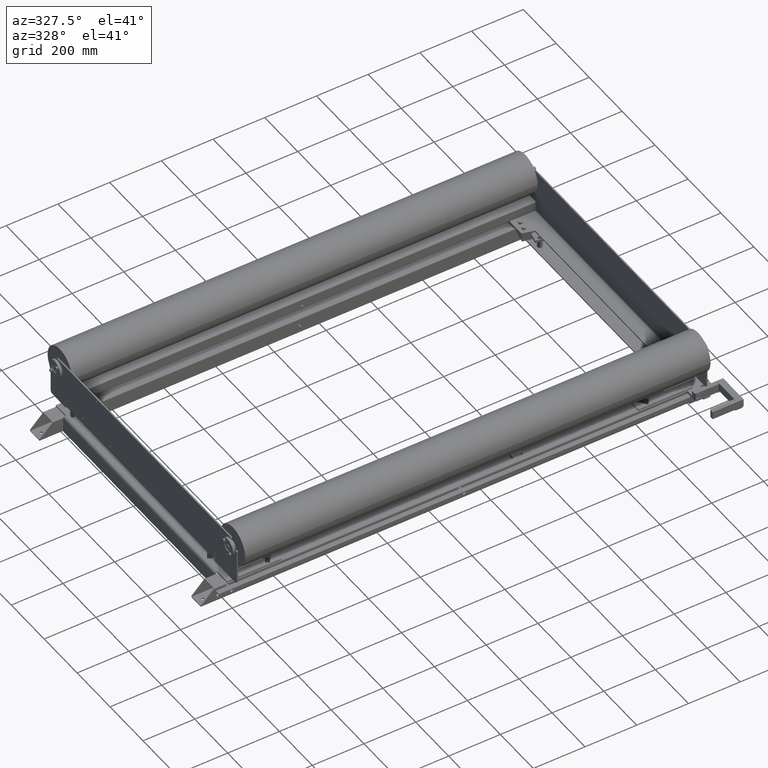
[diagram: clean part render]
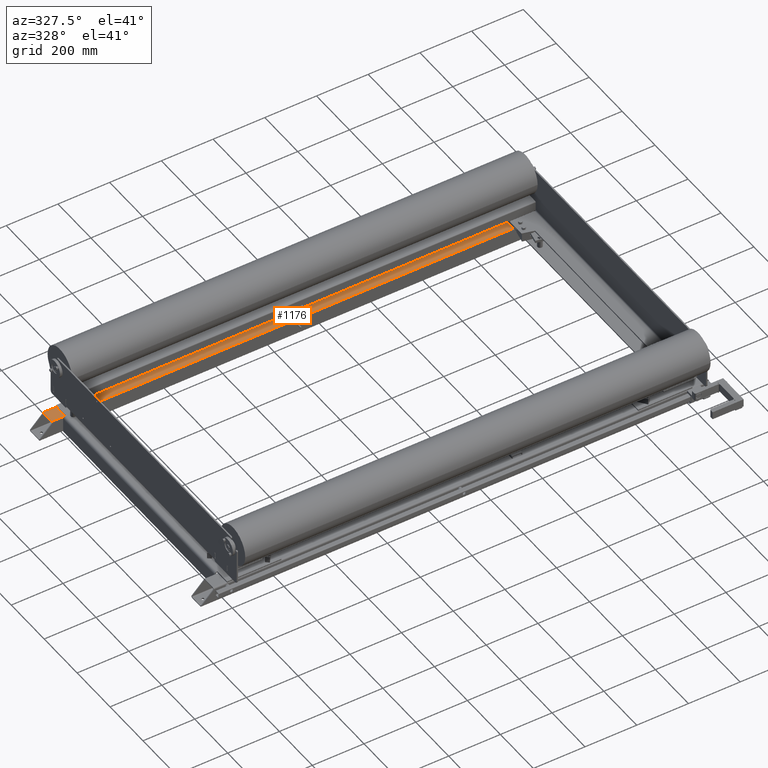
[diagram: same view with one face highlighted and labeled with its STEP entity id]
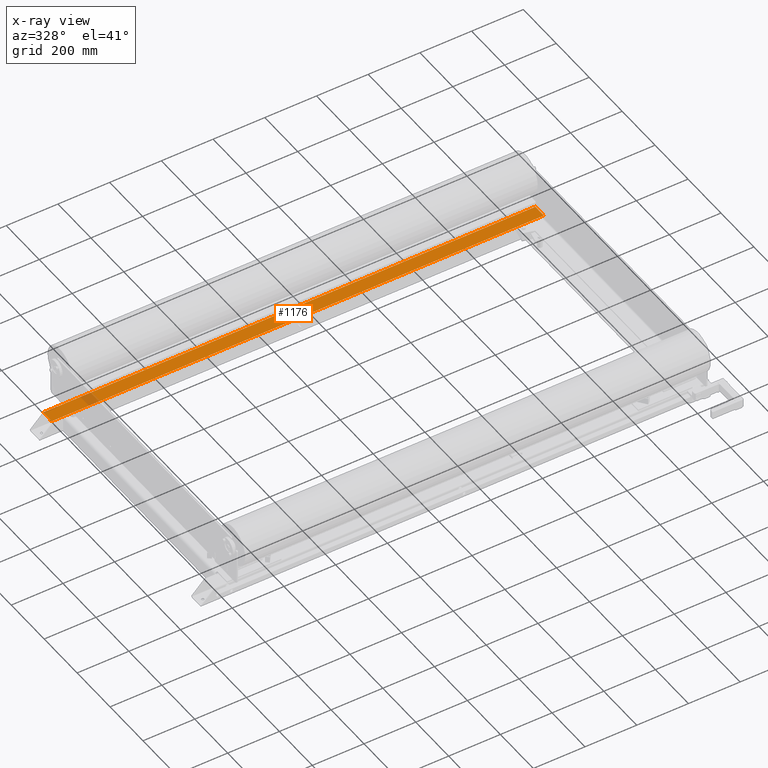
[diagram: x-ray of the same camera — body ghosted, the highlighted face saturated]
A machine part, auxiliary view. The second image highlights one B-rep face of the part: STEP entity #1176.
The next image is the same camera in x-ray: the body ghosted, the highlighted face saturated — about 2% of this face is hidden behind the body in this view.
In plain terms, the highlighted planar face has unit normal (0, 0, 1).
Its self-contained STEP definition (entity closure, byte-faithful):
#1073=CARTESIAN_POINT('',(-28.000000000000014,27.0,1552.000000000000200));
#1074=VERTEX_POINT('',#1073);
#1083=CARTESIAN_POINT('',(-28.000000000000014,27.0,-352.000000000000910));
#1084=VERTEX_POINT('',#1083);
#1092=CARTESIAN_POINT('',(-28.000000000000014,27.0,-352.000000000000910));
#1093=DIRECTION('',(0.0,0.0,1.0));
#1094=VECTOR('',#1093,1904.000000000001100);
#1095=LINE('',#1092,#1094);
#1096=EDGE_CURVE('',#1084,#1074,#1095,.T.);
#1107=CARTESIAN_POINT('',(-28.0,-25.0,1552.000000000000200));
#1108=VERTEX_POINT('',#1107);
#1109=CARTESIAN_POINT('',(-28.0,-25.0,1552.000000000000200));
#1110=DIRECTION('',(0.0,1.0,0.0));
#1111=VECTOR('',#1110,52.0);
#1112=LINE('',#1109,#1111);
#1113=EDGE_CURVE('',#1108,#1074,#1112,.T.);
#1153=CARTESIAN_POINT('',(-28.0,-29.0,-400.0));
#1154=DIRECTION('',(-1.0,0.0,0.0));
#1155=DIRECTION('',(0.0,0.0,1.0));
#1156=AXIS2_PLACEMENT_3D('',#1153,#1154,#1155);
#1157=PLANE('',#1156);
#1158=ORIENTED_EDGE('',*,*,#1096,.F.);
#1159=CARTESIAN_POINT('',(-28.0,-25.0,-352.000000000000910));
#1160=VERTEX_POINT('',#1159);
#1161=CARTESIAN_POINT('',(-28.000000000000014,27.0,-352.000000000000910));
#1162=DIRECTION('',(0.0,-1.0,0.0));
#1163=VECTOR('',#1162,52.0);
#1164=LINE('',#1161,#1163);
#1165=EDGE_CURVE('',#1084,#1160,#1164,.T.);
#1166=ORIENTED_EDGE('',*,*,#1165,.T.);
#1167=CARTESIAN_POINT('',(-28.0,-25.0,1552.000000000000200));
#1168=DIRECTION('',(0.0,0.0,-1.0));
#1169=VECTOR('',#1168,1904.000000000001100);
#1170=LINE('',#1167,#1169);
#1171=EDGE_CURVE('',#1108,#1160,#1170,.T.);
#1172=ORIENTED_EDGE('',*,*,#1171,.F.);
#1173=ORIENTED_EDGE('',*,*,#1113,.T.);
#1174=EDGE_LOOP('',(#1158,#1166,#1172,#1173));
#1175=FACE_OUTER_BOUND('',#1174,.T.);
#1176=ADVANCED_FACE('',(#1175),#1157,.T.);